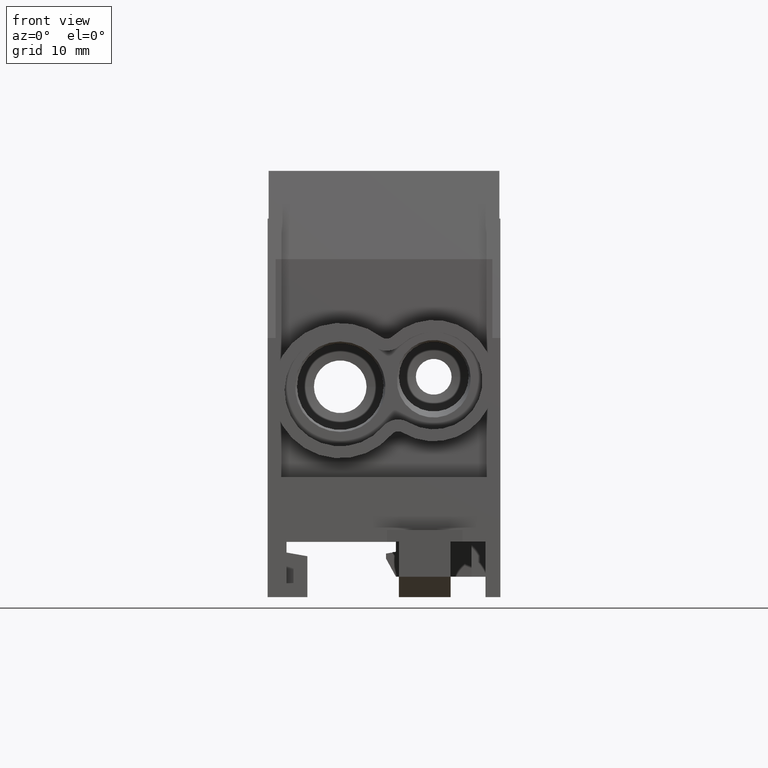
[diagram: clean part render]
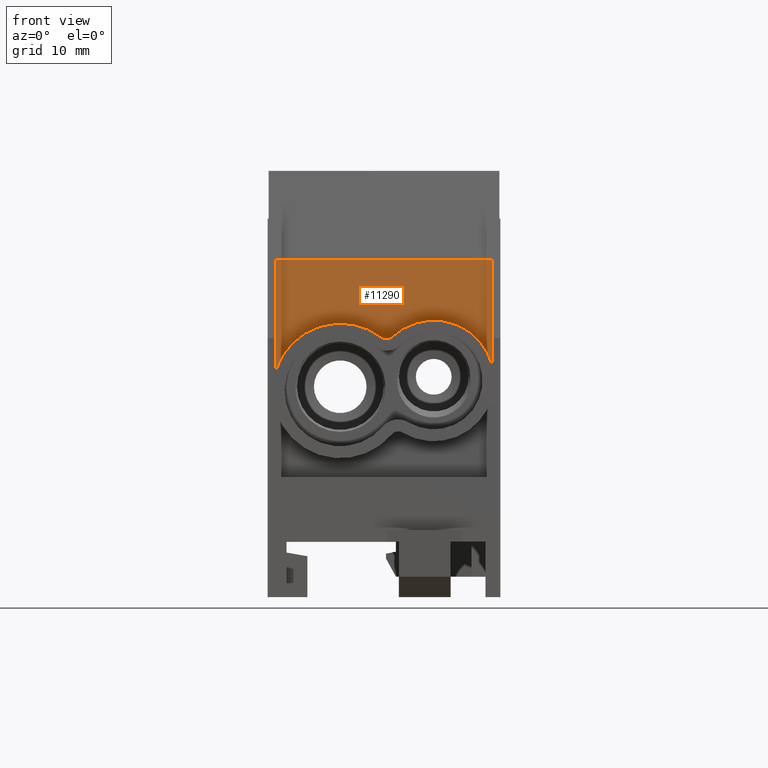
[diagram: same view with one face highlighted and labeled with its STEP entity id]
A machine part, front view. The second image highlights one B-rep face of the part: STEP entity #11290.
In plain terms, the highlighted planar face has unit normal (0, 1, 0).
Its self-contained STEP definition (entity closure, byte-faithful):
#10710=CARTESIAN_POINT('',(11.6,-21.,20.3));
#10720=DIRECTION('',(-0.,1.,2.58913951638329E-16));
#10730=DIRECTION('',(0.,-2.58913951638329E-16,1.));
#10740=AXIS2_PLACEMENT_3D('',#10710,#10720,#10730);
#10750=PLANE('',#10740);
#10760=CARTESIAN_POINT('',(-10.9,-21.,1.77635683940025E-15));
#10770=DIRECTION('',(0.,2.58913951638329E-16,-1.));
#10780=VECTOR('',#10770,1.);
#10790=LINE('',#10760,#10780);
#10800=CARTESIAN_POINT('',(-10.9,-21.,20.4312329952888));
#10810=VERTEX_POINT('',#10800);
#10820=CARTESIAN_POINT('',(-10.9,-21.,9.19749843554379));
#10830=VERTEX_POINT('',#10820);
#10840=EDGE_CURVE('',#10810,#10830,#10790,.T.);
#10850=ORIENTED_EDGE('',*,*,#10840,.T.);
#10860=CARTESIAN_POINT('',(1.77635683940025E-15,-21.,20.4312329952888));
#10870=DIRECTION('',(1.,0.,0.));
#10880=VECTOR('',#10870,1.);
#10890=LINE('',#10860,#10880);
#10900=CARTESIAN_POINT('',(10.9,-21.,20.4312329952888));
#10910=VERTEX_POINT('',#10900);
#10920=EDGE_CURVE('',#10810,#10910,#10890,.T.);
#10930=ORIENTED_EDGE('',*,*,#10920,.F.);
#10940=CARTESIAN_POINT('',(10.9,-21.,1.77635683940025E-15));
#10950=DIRECTION('',(0.,-2.58913951638329E-16,1.));
#10960=VECTOR('',#10950,1.);
#10970=LINE('',#10940,#10960);
#10980=CARTESIAN_POINT('',(10.9,-21.,9.74919333848297));
#10990=VERTEX_POINT('',#10980);
#11000=EDGE_CURVE('',#10990,#10910,#10970,.T.);
#11010=ORIENTED_EDGE('',*,*,#11000,.T.);
#11020=CARTESIAN_POINT('',(5.,-21.,8.19999999999999));
#11030=DIRECTION('',(0.,1.,0.));
#11040=DIRECTION('',(0.,0.,1.));
#11050=AXIS2_PLACEMENT_3D('',#11020,#11030,#11040);
#11060=CIRCLE('',#11050,6.1);
#11070=CARTESIAN_POINT('',(0.804163378097339,-21.,12.6277483038561));
#11080=VERTEX_POINT('',#11070);
#11090=EDGE_CURVE('',#11080,#10990,#11060,.T.);
#11100=ORIENTED_EDGE('',*,*,#11090,.T.);
#11110=CARTESIAN_POINT('',(0.253889722765841,-21.,13.2084366060011));
#11120=DIRECTION('',(0.,1.,0.));
#11130=DIRECTION('',(1.,0.,0.));
#11140=AXIS2_PLACEMENT_3D('',#11110,#11120,#11130);
#11150=CIRCLE('',#11140,0.8);
#11160=CARTESIAN_POINT('',(-0.235993405946353,-21.,12.5759695948431));
#11170=VERTEX_POINT('',#11160);
#11180=EDGE_CURVE('',#11080,#11170,#11150,.T.);
#11190=ORIENTED_EDGE('',*,*,#11180,.F.);
#11200=CARTESIAN_POINT('',(-4.39999999999999,-21.,7.19999999999999));
#11210=DIRECTION('',(0.,1.,0.));
#11220=DIRECTION('',(0.,0.,1.));
#11230=AXIS2_PLACEMENT_3D('',#11200,#11210,#11220);
#11240=CIRCLE('',#11230,6.8);
#11250=EDGE_CURVE('',#10830,#11170,#11240,.T.);
#11260=ORIENTED_EDGE('',*,*,#11250,.T.);
#11270=EDGE_LOOP('',(#11260,#11190,#11100,#11010,#10930,#10850));
#11280=FACE_OUTER_BOUND('',#11270,.T.);
#11290=ADVANCED_FACE('',(#11280),#10750,.F.);